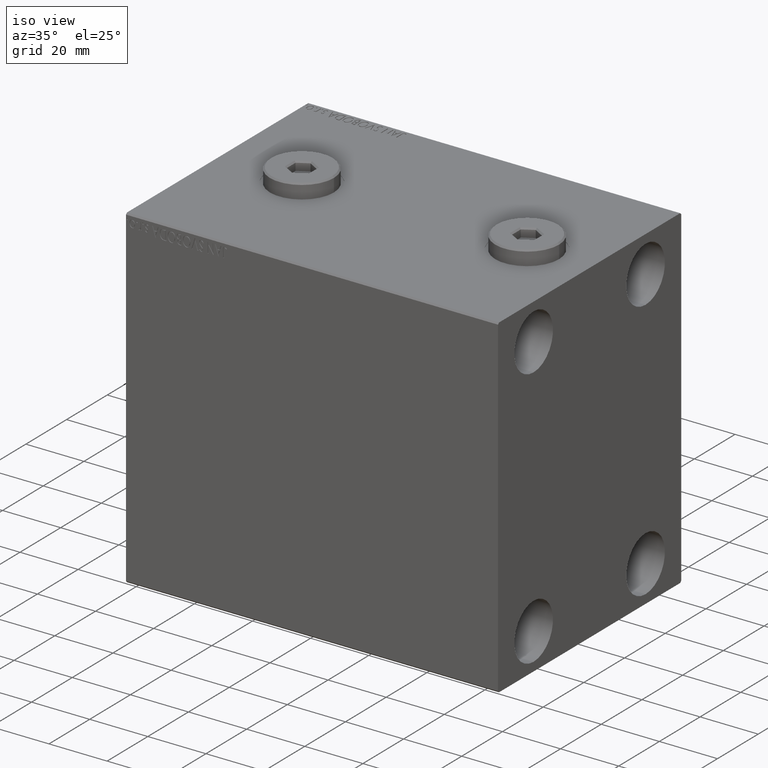
[diagram: clean part render]
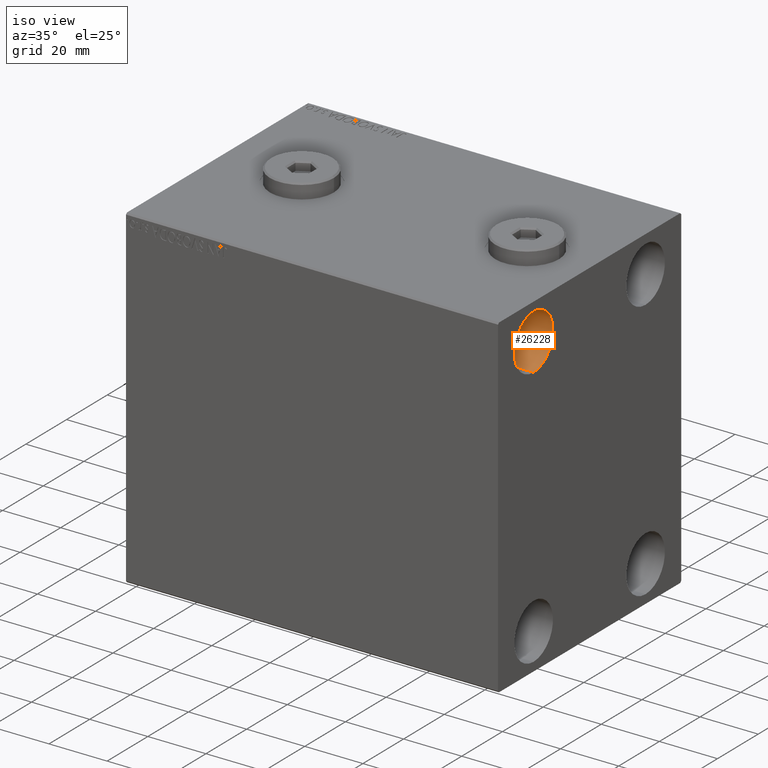
[diagram: same view with one face highlighted and labeled with its STEP entity id]
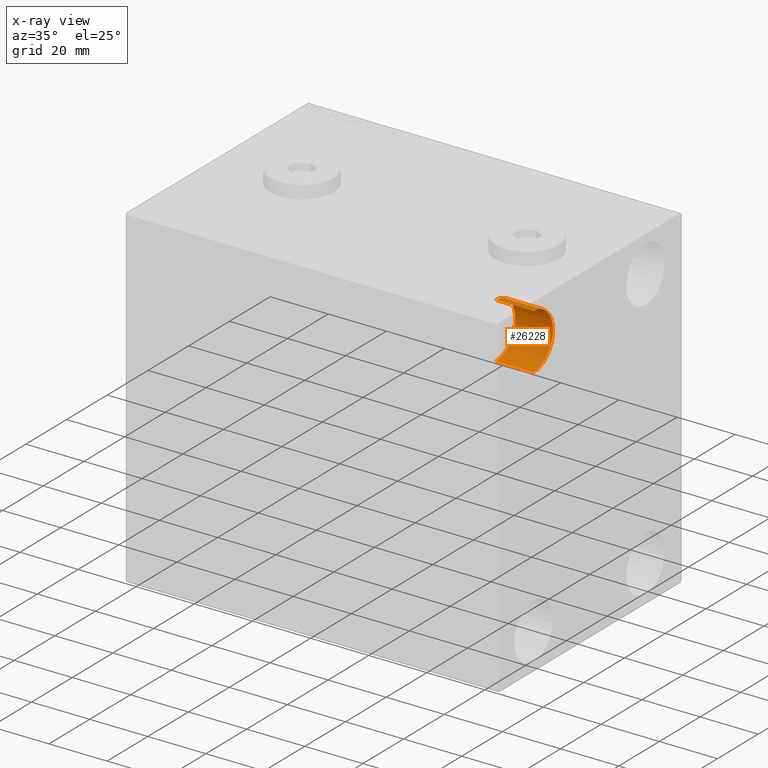
[diagram: x-ray of the same camera — body ghosted, the highlighted face saturated]
A machine part, iso view. The second image highlights one B-rep face of the part: STEP entity #26228.
The next image is the same camera in x-ray: the body ghosted, the highlighted face saturated — about 0% of this face is hidden behind the body in this view.
In plain terms, the highlighted cylindrical surface (edge-blend (fillet) strip) has radius 9.5 mm, axis along (1, 0, 0).
Its self-contained STEP definition (entity closure, byte-faithful):
#602 = CARTESIAN_POINT ( 'NONE',  ( 115.0000000000000000, -27.49999999999998934, 54.50000000000000711 ) ) ;
#1121 = AXIS2_PLACEMENT_3D ( 'NONE', #11910, #36860, #8932 ) ;
#8603 = VERTEX_POINT ( 'NONE', #13261 ) ;
#8932 = DIRECTION ( 'NONE',  ( 0.000000000000000000, 0.000000000000000000, 1.000000000000000000 ) ) ;
#9199 = AXIS2_PLACEMENT_3D ( 'NONE', #29918, #16195, #37027 ) ;
#11910 = CARTESIAN_POINT ( 'NONE',  ( 115.0000000000000000, -27.49999999999998934, 45.00000000000000711 ) ) ;
#13261 = CARTESIAN_POINT ( 'NONE',  ( 128.0000000000000000, -27.49999999999998934, 54.50000000000000711 ) ) ;
#13557 = CIRCLE ( 'NONE', #1121, 9.500000000000001776 ) ;
#14073 = CYLINDRICAL_SURFACE ( 'NONE', #44463, 9.500000000000001776 ) ;
#15729 = VERTEX_POINT ( 'NONE', #43216 ) ;
#16195 = DIRECTION ( 'NONE',  ( -1.000000000000000000, -0.000000000000000000, -0.000000000000000000 ) ) ;
#17115 = VECTOR ( 'NONE', #42511, 1000.000000000000000 ) ;
#17569 = EDGE_CURVE ( 'NONE', #15729, #30526, #18156, .T. ) ;
#17796 = LINE ( 'NONE', #602, #17115 ) ;
#18156 = LINE ( 'NONE', #41956, #39085 ) ;
#18218 = CARTESIAN_POINT ( 'NONE',  ( 115.0000000000000000, -27.49999999999998934, 45.00000000000000711 ) ) ;
#20010 = EDGE_CURVE ( 'NONE', #27163, #15729, #13557, .T. ) ;
#21574 = DIRECTION ( 'NONE',  ( 1.000000000000000000, -0.000000000000000000, -0.000000000000000000 ) ) ;
#24837 = CARTESIAN_POINT ( 'NONE',  ( 115.0000000000000000, -27.49999999999998934, 54.50000000000000711 ) ) ;
#26228 = ADVANCED_FACE ( 'NONE', ( #35357 ), #14073, .F. ) ;
#27163 = VERTEX_POINT ( 'NONE', #24837 ) ;
#27340 = ORIENTED_EDGE ( 'NONE', *, *, #17569, .T. ) ;
#28692 = EDGE_LOOP ( 'NONE', ( #34547, #30948, #27340, #38932 ) ) ;
#29918 = CARTESIAN_POINT ( 'NONE',  ( 128.0000000000000000, -27.49999999999998934, 45.00000000000000711 ) ) ;
#30526 = VERTEX_POINT ( 'NONE', #31977 ) ;
#30948 = ORIENTED_EDGE ( 'NONE', *, *, #20010, .T. ) ;
#31977 = CARTESIAN_POINT ( 'NONE',  ( 128.0000000000000000, -27.49999999999998934, 35.50000000000000711 ) ) ;
#32045 = EDGE_CURVE ( 'NONE', #27163, #8603, #17796, .T. ) ;
#34547 = ORIENTED_EDGE ( 'NONE', *, *, #32045, .F. ) ;
#34779 = CIRCLE ( 'NONE', #9199, 9.500000000000001776 ) ;
#34912 = DIRECTION ( 'NONE',  ( 1.000000000000000000, -0.000000000000000000, -0.000000000000000000 ) ) ;
#35357 = FACE_OUTER_BOUND ( 'NONE', #28692, .T. ) ;
#35593 = DIRECTION ( 'NONE',  ( 0.000000000000000000, 0.000000000000000000, -1.000000000000000000 ) ) ;
#36860 = DIRECTION ( 'NONE',  ( -1.000000000000000000, -0.000000000000000000, -0.000000000000000000 ) ) ;
#37027 = DIRECTION ( 'NONE',  ( 0.000000000000000000, 0.000000000000000000, 1.000000000000000000 ) ) ;
#38932 = ORIENTED_EDGE ( 'NONE', *, *, #39578, .F. ) ;
#39085 = VECTOR ( 'NONE', #21574, 1000.000000000000000 ) ;
#39578 = EDGE_CURVE ( 'NONE', #8603, #30526, #34779, .T. ) ;
#41956 = CARTESIAN_POINT ( 'NONE',  ( 115.0000000000000000, -27.49999999999998934, 35.50000000000000711 ) ) ;
#42511 = DIRECTION ( 'NONE',  ( 1.000000000000000000, -0.000000000000000000, -0.000000000000000000 ) ) ;
#43216 = CARTESIAN_POINT ( 'NONE',  ( 115.0000000000000000, -27.49999999999998934, 35.50000000000000711 ) ) ;
#44463 = AXIS2_PLACEMENT_3D ( 'NONE', #18218, #34912, #35593 ) ;